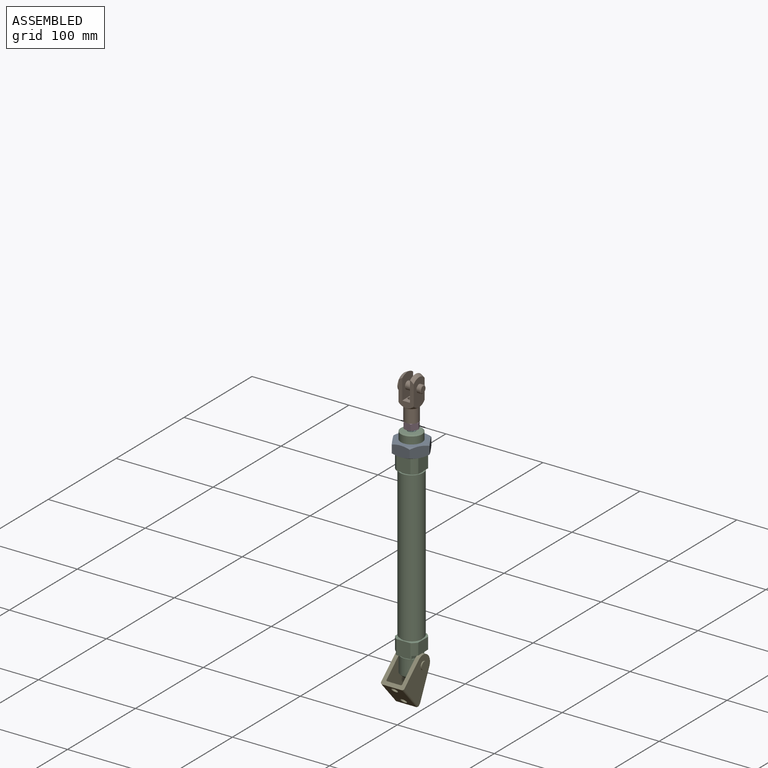
[diagram: assembled view]
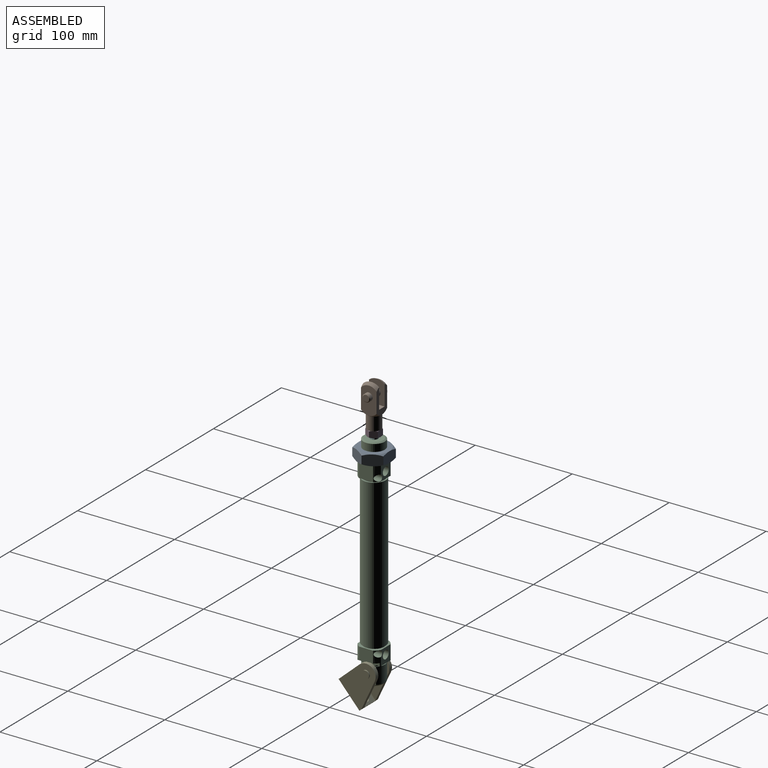
[diagram: assembled view, second angle]
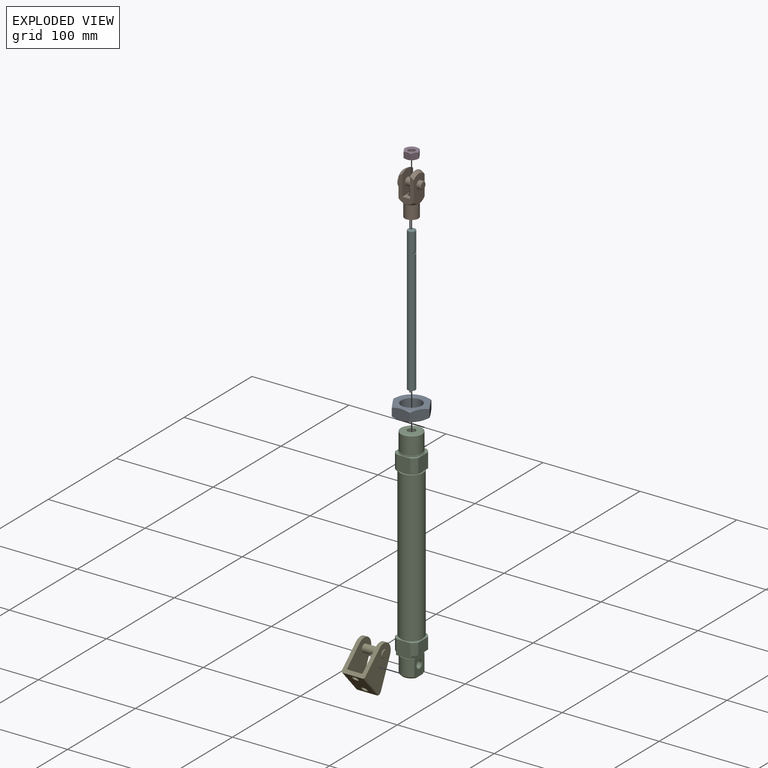
[diagram: exploded view]
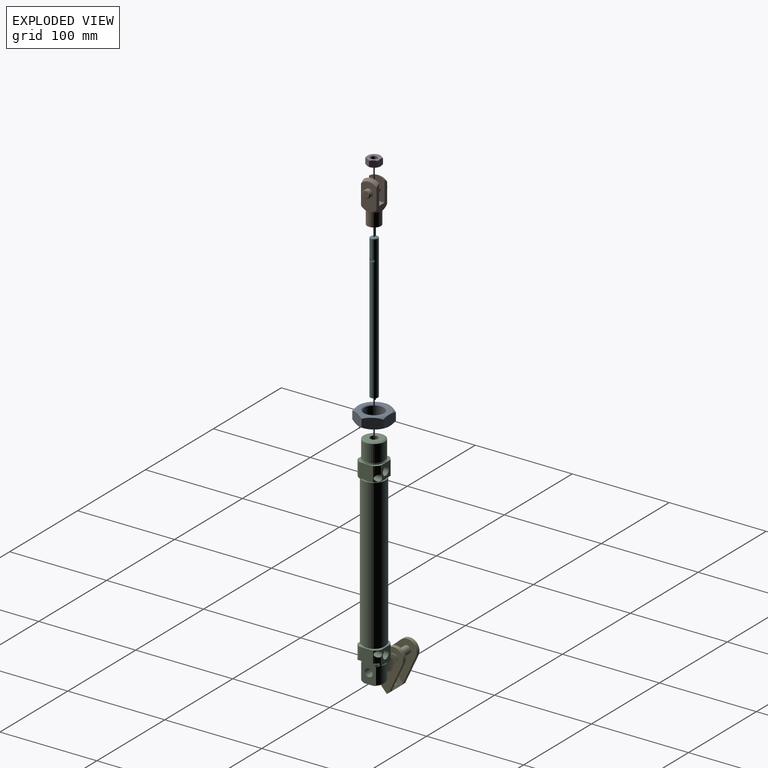
[diagram: exploded view, second angle]
ASSEMBLY  parts=6 mates=10
PART A: 23 faces, bbox 37x37x11 mm
  f0: cone r=10.59mm half-angle=45deg, axis (0,0,-1), area 76.4mm2, adj f1,f16
  f1: cylinder r=10.19mm len=20.38mm, axis (0,0,1), area 600.2mm2, adj f0,f2
  f2: cone r=10.59mm half-angle=45deg, axis (0,0,1), area 76.4mm2, adj f1,f15
  f3: cone r=17.24mm half-angle=60deg, axis (0,0,-1), area 15.9mm2, adj f15,f19,f22
  f4: cone r=17.24mm half-angle=60deg, axis (0,0,-1), area 15.9mm2, adj f15,f17,f20
  f5: cone r=17.24mm half-angle=60deg, axis (0,0,1), area 15.9mm2, adj f16,f19,f22
  f6: cone r=17.24mm half-angle=60deg, axis (0,0,1), area 15.9mm2, adj f16,f17,f20
  f7: cone r=17.24mm half-angle=60deg, axis (0,0,1), area 15.9mm2, adj f16,f18,f19
  f8: cone r=17.24mm half-angle=60deg, axis (0,0,1), area 15.9mm2, adj f16,f17,f18
  f9: cone r=17.24mm half-angle=60deg, axis (0,0,1), area 15.9mm2, adj f16,f20,f21
  f10: cone r=17.24mm half-angle=60deg, axis (0,0,1), area 15.9mm2, adj f16,f21,f22
  f11: cone r=17.24mm half-angle=60deg, axis (0,0,-1), area 15.9mm2, adj f15,f20,f21
  f12: cone r=17.24mm half-angle=60deg, axis (0,0,-1), area 15.9mm2, adj f15,f17,f18
  f13: cone r=17.24mm half-angle=60deg, axis (0,0,-1), area 15.9mm2, adj f15,f18,f19
  f14: cone r=17.24mm half-angle=60deg, axis (0,0,-1), area 15.9mm2, adj f15,f21,f22
  f15: plane 32x32mm, normal (0,0,1), area 424.1mm2, adj f2,f3,f4,f11,f12,f13,f14
  f16: plane 32x32mm, normal (0,0,-1), area 424.1mm2, adj f0,f5,f6,f7,f8,f9,f10
  f17: plane 16.02x11mm, normal (-0.87,-0.5,0), area 185.1mm2, adj f4,f6,f8,f12,f18,f20
  f18: plane 18.49x11mm, normal (0,-1,0), area 185.1mm2, adj f7,f8,f12,f13,f17,f19
  f19: plane 16.02x11mm, normal (0.87,-0.5,0), area 185.1mm2, adj f3,f5,f7,f13,f18,f22
  f20: plane 16.02x11mm, normal (-0.87,0.5,0), area 185.1mm2, adj f4,f6,f9,f11,f17,f21
  f21: plane 18.49x11mm, normal (0,1,0), area 185.1mm2, adj f9,f10,f11,f14,f20,f22
  f22: plane 16.02x11mm, normal (0.87,0.5,0), area 185.1mm2, adj f3,f5,f10,f14,f19,f21
PART B: 24 faces, bbox 23x20x44.4 mm
  f0: sphere r=13mm, area 124.3mm2, adj f1,f19,f21,f22,f23
  f1: cylinder r=7.04mm len=14.08mm, axis (0,0,-1), area 609.2mm2, adj f0,f20
  f2: sphere r=13mm, area 76.4mm2, adj f16,f19,f21,f22
  f3: sphere r=13mm, area 76.4mm2, adj f17,f19,f22,f23
  f4: cone r=3.66mm half-angle=45deg, axis (0,0,-1), area 22mm2, adj f5,f20
  f5: cylinder r=3.32mm len=19.82mm, axis (0,0,-1), area 413.9mm2, adj f4,f18
  f6: cylinder r=4mm len=8mm, axis (1,0,0), area 88.3mm2, adj f10,f21
  f7: sphere r=11mm, area 52mm2, adj f8
  f8: cylinder r=4mm len=8mm, axis (1,0,0), area 6.2mm2, adj f7,f14
  f9: cylinder r=6.6mm len=13.2mm, axis (-1,0,0), area 82.9mm2, adj f13,f14
  f10: cone r=3.66mm half-angle=45deg, axis (-1,0,0), area 22mm2, adj f6,f15
  f11: cylinder r=4mm len=8mm, axis (1,0,0), area 201.1mm2, adj f16,f17
  f12: cylinder r=4mm len=8mm, axis (1,0,0), area 4.8mm2, adj f13,f23
  f13: plane 13.2x13.2mm, normal (1,0,0), area 86.6mm2, adj f9,f12
  f14: plane 13.2x13.2mm, normal (-1,0,0), area 86.6mm2, adj f8,f9
  f15: plane 6.65x6.65mm, normal (1,0,0), area 34.7mm2, adj f10
  f16: plane 23.87x16mm, normal (-1,0,0), area 316.8mm2, adj f2,f11,f18,f19,f22
  f17: plane 23.87x16mm, normal (1,0,0), area 316.8mm2, adj f3,f11,f18,f19,f22
  f18: plane 16x8mm, normal (0,0,1), area 93.3mm2, adj f5,f16,f17,f19,f22
  f19: plane 26.98x15.62mm, normal (0,-1,0), area 227.8mm2, adj f0,f2,f3,f16,f17,f18,f21,f23
  f20: plane 14.08x14.08mm, normal (0,0,-1), area 105.4mm2, adj f1,f4
  f21: plane 28.09x16mm, normal (1,0,0), area 362.4mm2, adj f0,f2,f6,f19,f22
  f22: plane 26.98x15.62mm, normal (0,1,0), area 227.8mm2, adj f0,f2,f3,f16,f17,f18,f21,f23
  f23: plane 28.09x16mm, normal (-1,0,0), area 362.4mm2, adj f0,f3,f12,f19,f22
PART C: 61 faces, bbox 24.3x24.3x227.3 mm
  f0: cone r=10.19mm half-angle=63.4deg, axis (0,0,-1), area 116.2mm2, adj f1,f60
  f1: cylinder r=11mm len=22mm, axis (0,0,1), area 1222.5mm2, adj f0,f59
  f2: cylinder r=10.25mm len=20.5mm, axis (0,0,1), area 48.3mm2, adj f58,f59
  f3: cylinder r=11mm len=22mm, axis (0,0,1), area 51.8mm2, adj f49,f58
  f4: cylinder r=10.5mm len=21mm, axis (0,0,-1), area 99mm2, adj f47,f54
  f5: cylinder r=10.5mm len=21mm, axis (0,0,-1), area 99mm2, adj f40,f48
  f6: cylinder r=12mm len=154mm, axis (0,0,-1), area 11611.3mm2, adj f47,f48
  f7: cylinder r=11mm len=16mm, axis (0,0,1), area 13.4mm2, adj f28,f35,f39,f45
  f8: cylinder r=10.25mm len=16mm, axis (0,0,1), area 13.8mm2, adj f28,f35,f38,f39
  f9: cylinder r=11mm len=16.88mm, axis (0,0,1), area 302.3mm2, adj f10,f28,f35,f38
  f10: cone r=10.19mm half-angle=45deg, axis (0,0,1), area 42.8mm2, adj f9,f28,f30,f35
  f11: cylinder r=11mm len=16mm, axis (0,0,1), area 13.4mm2, adj f28,f32,f33,f35
  f12: cylinder r=10.25mm len=16mm, axis (0,0,1), area 13.8mm2, adj f28,f31,f32,f35
  f13: cylinder r=11mm len=16.88mm, axis (0,0,1), area 302.3mm2, adj f14,f28,f31,f35
  f14: cone r=10.19mm half-angle=45deg, axis (0,0,1), area 42.8mm2, adj f13,f28,f30,f35
  f15: cylinder r=4mm len=16mm, axis (-1,0,0), area 402.1mm2, adj f28,f35
  f16: cylinder r=4.28mm len=8.57mm, axis (0,-1,0), area 161.5mm2, adj f25,f27
  f17: cylinder r=4.28mm len=8.57mm, axis (0,-1,0), area 161.5mm2, adj f23,f26
  f18: cylinder r=3.21mm len=12mm, axis (0,-1,0), area 211.7mm2, adj f24,f25,f53
  f19: cylinder r=3.21mm len=12mm, axis (0,-1,0), area 211.7mm2, adj f22,f23,f44
  f20: cylinder r=4mm len=125mm, axis (0,0,-1), area 3141.6mm2, adj f21,f60
  f21: plane 8x8mm, normal (0,0,1), area 50.3mm2, adj f20
  f22: plane 6.42x6.42mm, normal (0,1,0), area 32.4mm2, adj f19
  f23: plane 15x14.42mm, normal (0,1,0), area 150.5mm2, adj f17,f19,f33,f34,f40,f44
  f24: plane 6.42x6.42mm, normal (0,1,0), area 32.4mm2, adj f18
  f25: plane 15x14.42mm, normal (0,1,0), area 150.5mm2, adj f16,f18,f49,f53,f54,f57
  f26: plane 8.57x8.57mm, normal (0,1,0), area 57.6mm2, adj f17
  f27: plane 8.57x8.57mm, normal (0,1,0), area 57.6mm2, adj f16
  f28: plane 23.26x23.24mm, normal (-1,0,0), area 314.8mm2, adj f7,f8,f9,f10,f11,f12,f13,f14
  f29: plane 22.98x4mm, normal (0,0,-1), area 77.2mm2, adj f28,f34,f41,f42
  f30: plane 18.75x16mm, normal (0,0,-1), area 258mm2, adj f10,f14,f28,f35
  f31: plane 16x4.59mm, normal (0,0,1), area 13.6mm2, adj f12,f13,f28,f35
  f32: plane 16x4.59mm, normal (0,0,-1), area 13.6mm2, adj f11,f12,f28,f35
  f33: plane 16x4.45mm, normal (0,0,-1), area 32.7mm2, adj f11,f23,f28,f34,f35,f44
  f34: cylinder r=14mm len=15mm, axis (0,0,-1), area 84.9mm2, adj f23,f28,f29,f33,f40,f41
  f35: plane 23.26x23.24mm, normal (1,0,0), area 314.8mm2, adj f7,f8,f9,f10,f11,f12,f13,f14
  f36: plane 22.98x4mm, normal (0,0,-1), area 77.2mm2, adj f35,f37,f43,f44
  f37: cylinder r=14mm len=15mm, axis (0,0,-1), area 84.9mm2, adj f35,f36,f40,f43,f45,f46
  f38: plane 16x4.59mm, normal (0,0,1), area 13.6mm2, adj f8,f9,f28,f35
  f39: plane 16x4.59mm, normal (0,0,-1), area 13.6mm2, adj f7,f8,f28,f35
  f40: plane 24x24mm, normal (0,0,1), area 191.3mm2, adj f5,f23,f34,f37,f41,f42,f43,f44
  f41: plane 14.42x12mm, normal (-1,0,0), area 173.1mm2, adj f29,f34,f40,f42
  f42: cylinder r=14mm len=15mm, axis (0,0,-1), area 84.9mm2, adj f28,f29,f40,f41,f45,f46
  f43: plane 14.42x12mm, normal (1,0,0), area 173.1mm2, adj f36,f37,f40,f44
  f44: cylinder r=14mm len=15mm, axis (0,0,-1), area 52.1mm2, adj f19,f23,f33,f35,f36,f40,f43
  f45: plane 16x4.45mm, normal (0,0,-1), area 32.7mm2, adj f7,f28,f35,f37,f42,f46
  f46: plane 15x14.42mm, normal (0,-1,0), area 216.3mm2, adj f37,f40,f42,f45
  f47: plane 24x24mm, normal (0,0,1), area 106mm2, adj f4,f6
  f48: plane 24x24mm, normal (0,0,-1), area 106mm2, adj f5,f6
  f49: plane 24x24mm, normal (0,0,1), area 157.5mm2, adj f3,f25,f50,f51,f52,f53,f55,f56
  f50: plane 15x14.42mm, normal (-1,0,0), area 216.3mm2, adj f49,f51,f54,f57
  f51: cylinder r=14mm len=15mm, axis (0,0,-1), area 102.6mm2, adj f49,f50,f54,f56
  f52: plane 15x14.42mm, normal (1,0,0), area 216.3mm2, adj f49,f53,f54,f55
  f53: cylinder r=14mm len=15mm, axis (0,0,-1), area 69.8mm2, adj f18,f25,f49,f52,f54
  f54: plane 24x24mm, normal (0,0,-1), area 191.3mm2, adj f4,f25,f50,f51,f52,f53,f55,f56
  f55: cylinder r=14mm len=15mm, axis (0,0,-1), area 102.6mm2, adj f49,f52,f54,f56
  f56: plane 15x14.42mm, normal (0,-1,0), area 216.3mm2, adj f49,f51,f54,f55
  f57: cylinder r=14mm len=15mm, axis (0,0,-1), area 102.6mm2, adj f25,f49,f50,f54
  f58: plane 22x22mm, normal (0,0,1), area 50.1mm2, adj f2,f3
  f59: plane 22x22mm, normal (0,0,-1), area 50.1mm2, adj f1,f2
  f60: plane 18.75x18.75mm, normal (0,0,1), area 225.9mm2, adj f0,f20
PART D: 23 faces, bbox 15x15x6.8 mm
  f0: cone r=3.66mm half-angle=45deg, axis (0,0,-1), area 22mm2, adj f1,f16
  f1: cylinder r=3.32mm len=6.65mm, axis (0,0,1), area 113.7mm2, adj f0,f2
  f2: cone r=3.66mm half-angle=45deg, axis (0,0,1), area 22mm2, adj f1,f15
  f3: cone r=7mm half-angle=60deg, axis (0,0,-1), area 2.6mm2, adj f15,f19,f22
  f4: cone r=7mm half-angle=60deg, axis (0,0,-1), area 2.6mm2, adj f15,f17,f20
  f5: cone r=7mm half-angle=60deg, axis (0,0,1), area 2.6mm2, adj f16,f19,f22
  f6: cone r=7mm half-angle=60deg, axis (0,0,1), area 2.6mm2, adj f16,f17,f20
  f7: cone r=7mm half-angle=60deg, axis (0,0,1), area 2.6mm2, adj f16,f18,f19
  f8: cone r=7mm half-angle=60deg, axis (0,0,1), area 2.6mm2, adj f16,f17,f18
  f9: cone r=7mm half-angle=60deg, axis (0,0,1), area 2.6mm2, adj f16,f20,f21
  f10: cone r=7mm half-angle=60deg, axis (0,0,1), area 2.6mm2, adj f16,f21,f22
  f11: cone r=7mm half-angle=60deg, axis (0,0,-1), area 2.6mm2, adj f15,f20,f21
  f12: cone r=7mm half-angle=60deg, axis (0,0,-1), area 2.6mm2, adj f15,f17,f18
  f13: cone r=7mm half-angle=60deg, axis (0,0,-1), area 2.6mm2, adj f15,f18,f19
  f14: cone r=7mm half-angle=60deg, axis (0,0,-1), area 2.6mm2, adj f15,f21,f22
  f15: plane 13x13mm, normal (0,0,1), area 82.5mm2, adj f2,f3,f4,f11,f12,f13,f14
  f16: plane 13x13mm, normal (0,0,-1), area 82.5mm2, adj f0,f5,f6,f7,f8,f9,f10
  f17: plane 6.8x6.51mm, normal (-0.87,-0.5,0), area 48mm2, adj f4,f6,f8,f12,f18,f20
  f18: plane 7.51x6.8mm, normal (0,-1,0), area 48mm2, adj f7,f8,f12,f13,f17,f19
  f19: plane 6.8x6.51mm, normal (0.87,-0.5,0), area 48mm2, adj f3,f5,f7,f13,f18,f22
  f20: plane 6.8x6.51mm, normal (-0.87,0.5,0), area 48mm2, adj f4,f6,f9,f11,f17,f21
  f21: plane 7.51x6.8mm, normal (0,1,0), area 48mm2, adj f9,f10,f11,f14,f20,f22
  f22: plane 6.8x6.51mm, normal (0.87,0.5,0), area 48mm2, adj f3,f5,f10,f14,f19,f21
PART E: 23 faces, bbox 26.5x40x32 mm
  f0: cylinder r=3.25mm len=6.5mm, axis (0,1,0), area 81.7mm2, adj f18,f21
  f1: cylinder r=3.25mm len=6.5mm, axis (0,1,0), area 81.7mm2, adj f18,f21
  f2: cylinder r=4mm len=8mm, axis (-1,0,0), area 30.3mm2, adj f6,f12
  f3: cylinder r=4mm len=16.1mm, axis (-1,0,0), area 404.6mm2, adj f11,f14
  f4: cylinder r=4mm len=8mm, axis (-1,0,0), area 30.3mm2, adj f5,f16
  f5: plane 8x8mm, normal (1,0,0), area 50.3mm2, adj f4
  f6: plane 8x8mm, normal (-1,0,0), area 50.3mm2, adj f2
  f7: plane 29.93x12.81mm, normal (0,0.39,-0.92), area 130.5mm2, adj f9,f13,f14,f16,f22
  f8: plane 29.93x12.81mm, normal (0,0.39,-0.92), area 130.5mm2, adj f10,f11,f12,f19,f22
  f9: cylinder r=10mm len=19.19mm, axis (1,0,0), area 109.5mm2, adj f7,f14,f15,f16
  f10: cylinder r=10mm len=19.19mm, axis (1,0,0), area 109.5mm2, adj f8,f11,f12,f15
  f11: plane 35x31.57mm, normal (1,0,0), area 763.6mm2, adj f3,f8,f10,f15,f19
  f12: plane 38x32mm, normal (-1,0,0), area 859.4mm2, adj f2,f8,f10,f15,f20,f22
  f13: cylinder r=1mm len=32mm, axis (0,0,-1), area 50mm2, adj f7,f14,f15,f18
  f14: plane 35x31.57mm, normal (-1,0,0), area 763.6mm2, adj f3,f7,f9,f13,f15
  f15: plane 30x24.1mm, normal (0,0,1), area 303.1mm2, adj f9,f10,f11,f12,f13,f14,f16,f17
  f16: plane 38x32mm, normal (1,0,0), area 859.4mm2, adj f4,f7,f9,f15,f17,f22
  f17: cylinder r=2mm len=32mm, axis (0,0,-1), area 100.5mm2, adj f15,f16,f21,f22
  f18: plane 32x14.1mm, normal (0,1,0), area 384.8mm2, adj f0,f1,f13,f15,f19,f22
  f19: cylinder r=1mm len=32mm, axis (0,0,-1), area 50mm2, adj f8,f11,f15,f18
  f20: cylinder r=2mm len=32mm, axis (0,0,-1), area 100.5mm2, adj f12,f15,f21,f22
  f21: plane 32x20.1mm, normal (0,-1,0), area 576.8mm2, adj f0,f1,f15,f17,f20,f22
  f22: plane 24.1x4mm, normal (0,0,-1), area 94.7mm2, adj f7,f8,f12,f16,f17,f18,f20,f21
PART F: 10 faces, bbox 8x8x149 mm
  f0: cone r=3.32mm half-angle=63.4deg, axis (0,0,-1), area 31.6mm2, adj f1,f9
  f1: cylinder r=4mm len=148.32mm, axis (0,0,1), area 3704.6mm2, adj f0,f2,f3,f4,f5,f6,f7,f8
  f2: plane 5.29x1mm, normal (0,0,-1), area 3.6mm2, adj f1,f4
  f3: plane 5.29x1mm, normal (0,0,1), area 3.6mm2, adj f1,f4
  f4: plane 5.29x2mm, normal (0,-1,0), area 10.6mm2, adj f1,f2,f3
  f5: plane 5.29x1mm, normal (0,0,1), area 3.6mm2, adj f1,f6
  f6: plane 5.29x2mm, normal (0,1,0), area 10.6mm2, adj f1,f5,f7
  f7: plane 5.29x1mm, normal (0,0,-1), area 3.6mm2, adj f1,f6
  f8: plane 8x8mm, normal (0,0,-1), area 50.3mm2, adj f1
  f9: plane 5.29x5.29mm, normal (0,0,1), area 22mm2, adj f0
PLACE A t=(-111.67,-62.3,16.86)mm
PLACE B t=(-111.67,-62.3,29.75)mm
PLACE C t=(-111.67,-62.3,20.61)mm fixed
PLACE D t=(-111.67,-62.3,12.95)mm
PLACE E rot(axis=(1,0,0),41.9deg) t=(-111.72,-91.31,-207.97)mm
PLACE F rot(axis=(0,0,-1),90deg) t=(-111.67,-62.3,18.95)mm
MATE planar D.f16 <-> F.f2  axis (0,0,-1) through (-111.67,-68.8,22.95)mm
MATE slider F.f1 <-> C.f2  axis (0,0,1) through (-111.67,-62.3,-31.89)mm
MATE cylindrical F.f1 <-> C.f7  axis (0,0,1) through (-111.67,-62.3,-31.89)mm
MATE planar B.f4 <-> D.f0  axis (0,0,-1) through (-111.67,-62.3,29.75)mm
MATE cylindrical B.f5 <-> F.f0  axis (0,0,-1) through (-111.67,-62.3,30.43)mm
MATE cylindrical E.f2 <-> C.f15  axis (-1,0,0) through (-111.72,-62.3,-195.39)mm
MATE planar E.f14 <-> C.f35  axis (-1,0,0) through (-103.67,-68.29,-204.57)mm
MATE planar A.f3 <-> C.f7  axis (0,0,-1) through (-111.67,-62.3,1.36)mm
MATE cylindrical D.f1 <-> F.f1  axis (0,0,1) through (-111.67,-62.3,29.08)mm
MATE cylindrical A.f0 <-> C.f2  axis (0,0,1) through (-111.67,-62.3,2.18)mm
